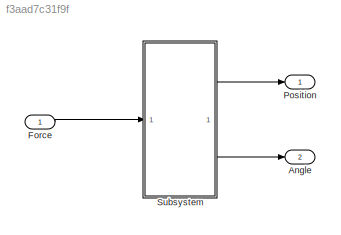
MODEL slx_f3aad7c31f9f
KIND model
CONFIG AbsTol = auto
CONFIG EnableMultiTasking = off
CONFIG FixedStep = auto
CONFIG MaxStep = auto
CONFIG MinStep = auto
CONFIG RelTol = 1e-3
CONFIG SampleTimeConstraint = Unconstrained
CONFIG SolverName = VariableStepAuto
CONFIG StartTime = 0.0
CONFIG StopTime = 10.0
BLOCK [Outport] Angle
  Port = 2
BLOCK [Inport] Force
BLOCK [Outport] Position
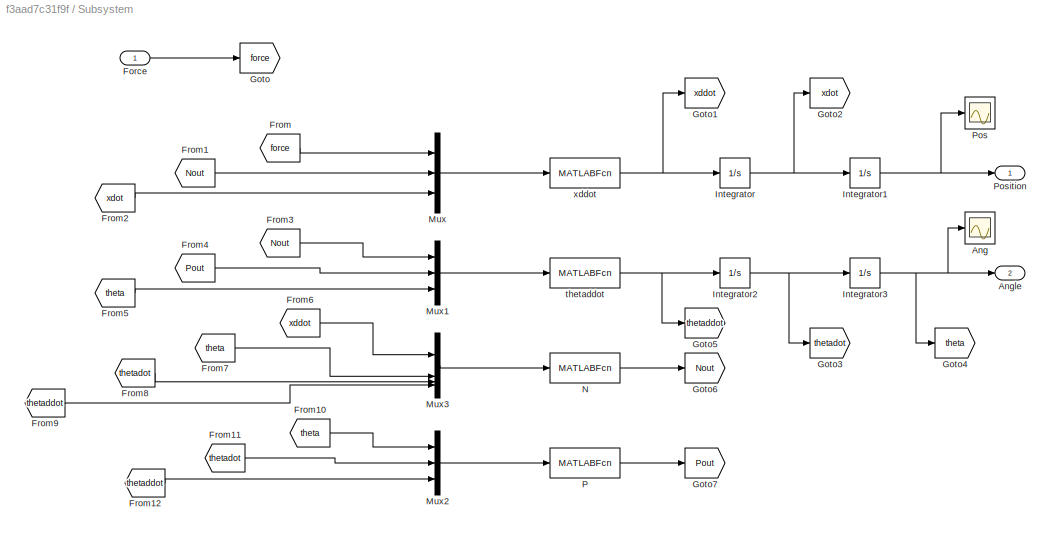
BLOCK [SubSystem] Subsystem
BLOCK [Scope] Subsystem/Ang
  Floating = off
  NumInputPorts = 1
  ScopeSpecificationString = Simulink.scopes.TimeScopeBlockCfg('CurrentConfiguration', extmgr.ConfigurationSet(extmgr.Configuration('Core','General UI',true),extmgr.Configuration('Core','Source UI',true),extmgr.Configuration('Sources','WiredSimulink',true,'DataLoggingVariableName','ScopeData1'),extmgr.Configuration('Visuals','Time Domain',true,'SerializedDisplays',{struct('MinYLimReal','-0.000005','MaxYLimReal','0.000005','YL...<+1407ch>
BLOCK [Outport] Subsystem/Angle
  Port = 2
BLOCK [Inport] Subsystem/Force
BLOCK [From] Subsystem/From
  GotoTag = force
BLOCK [From] Subsystem/From1
  GotoTag = Nout
BLOCK [From] Subsystem/From10
  GotoTag = theta
BLOCK [From] Subsystem/From11
  GotoTag = thetadot
BLOCK [From] Subsystem/From12
  GotoTag = thetaddot
BLOCK [From] Subsystem/From2
  GotoTag = xdot
BLOCK [From] Subsystem/From3
  GotoTag = Nout
BLOCK [From] Subsystem/From4
  GotoTag = Pout
BLOCK [From] Subsystem/From5
  GotoTag = theta
BLOCK [From] Subsystem/From6
  GotoTag = xddot
BLOCK [From] Subsystem/From7
  GotoTag = theta
BLOCK [From] Subsystem/From8
  GotoTag = thetadot
BLOCK [From] Subsystem/From9
  GotoTag = thetaddot
BLOCK [Goto] Subsystem/Goto
  GotoTag = force
BLOCK [Goto] Subsystem/Goto1
  GotoTag = xddot
BLOCK [Goto] Subsystem/Goto2
  GotoTag = xdot
BLOCK [Goto] Subsystem/Goto3
  GotoTag = thetadot
BLOCK [Goto] Subsystem/Goto4
  GotoTag = theta
BLOCK [Goto] Subsystem/Goto5
  GotoTag = thetaddot
BLOCK [Goto] Subsystem/Goto6
  GotoTag = Nout
BLOCK [Goto] Subsystem/Goto7
  GotoTag = Pout
BLOCK [Integrator] Subsystem/Integrator
BLOCK [Integrator] Subsystem/Integrator1
BLOCK [Integrator] Subsystem/Integrator2
BLOCK [Integrator] Subsystem/Integrator3
BLOCK [Mux] Subsystem/Mux
  DisplayOption = bar
  Inputs = 3
BLOCK [Mux] Subsystem/Mux1
  DisplayOption = bar
  Inputs = 3
BLOCK [Mux] Subsystem/Mux2
  DisplayOption = bar
  Inputs = 3
BLOCK [Mux] Subsystem/Mux3
  DisplayOption = bar
BLOCK [MATLABFcn] Subsystem/N
  MATLABFcn = m*(u(1) - l*(u(3)^2)*sin(u(2)) + l*u(4)*cos(2))
BLOCK [MATLABFcn] Subsystem/P
  MATLABFcn = m*(l*(u(2)^2)*cos(1) + l*u(3)*sin(u(1)) + g)
BLOCK [Scope] Subsystem/Pos
  Floating = off
  NumInputPorts = 1
  ScopeSpecificationString = Simulink.scopes.TimeScopeBlockCfg('CurrentConfiguration', extmgr.ConfigurationSet(extmgr.Configuration('Core','General UI',true),extmgr.Configuration('Core','Source UI',true),extmgr.Configuration('Sources','WiredSimulink',true),extmgr.Configuration('Visuals','Time Domain',true,'SerializedDisplays',{struct('MinYLimReal','-0.00000018','MaxYLimReal','0.00000019','YLabelReal','','MinYLimMag','0.000000...<+1389ch>
BLOCK [Outport] Subsystem/Position
BLOCK [MATLABFcn] Subsystem/thetaddot
  MATLABFcn = (1/I)*(-u(1)*l*cos(u(3)) - (u(2)*l*sin(u(3))))
BLOCK [MATLABFcn] Subsystem/xddot
  MATLABFcn = (1/M)*(u(1) - u(2) - b*u(3))
LINE Force:1 -> Subsystem:1
LINE Subsystem/Force:1 -> Subsystem/Goto:1
LINE Subsystem/From10:1 -> Subsystem/Mux2:1
LINE Subsystem/From11:1 -> Subsystem/Mux2:2
LINE Subsystem/From12:1 -> Subsystem/Mux2:3
LINE Subsystem/From1:1 -> Subsystem/Mux:2
LINE Subsystem/From2:1 -> Subsystem/Mux:3
LINE Subsystem/From3:1 -> Subsystem/Mux1:1
LINE Subsystem/From4:1 -> Subsystem/Mux1:2
LINE Subsystem/From5:1 -> Subsystem/Mux1:3
LINE Subsystem/From6:1 -> Subsystem/Mux3:1
LINE Subsystem/From7:1 -> Subsystem/Mux3:2
LINE Subsystem/From8:1 -> Subsystem/Mux3:3
LINE Subsystem/From9:1 -> Subsystem/Mux3:4
LINE Subsystem/From:1 -> Subsystem/Mux:1
NET Subsystem/Integrator1:1 -> Subsystem/Pos:1, Subsystem/Position:1
NET Subsystem/Integrator2:1 -> Subsystem/Goto3:1, Subsystem/Integrator3:1
NET Subsystem/Integrator3:1 -> Subsystem/Ang:1, Subsystem/Angle:1, Subsystem/Goto4:1
NET Subsystem/Integrator:1 -> Subsystem/Goto2:1, Subsystem/Integrator1:1
LINE Subsystem/Mux1:1 -> Subsystem/thetaddot:1
LINE Subsystem/Mux2:1 -> Subsystem/P:1
LINE Subsystem/Mux3:1 -> Subsystem/N:1
LINE Subsystem/Mux:1 -> Subsystem/xddot:1
LINE Subsystem/N:1 -> Subsystem/Goto6:1
LINE Subsystem/P:1 -> Subsystem/Goto7:1
NET Subsystem/thetaddot:1 -> Subsystem/Goto5:1, Subsystem/Integrator2:1
NET Subsystem/xddot:1 -> Subsystem/Goto1:1, Subsystem/Integrator:1
LINE Subsystem:1 -> Position:1
LINE Subsystem:2 -> Angle:1
note: NET lines group one-source signal fan-out (src -> all destinations, sorted); 1:1 wires keep LINE
